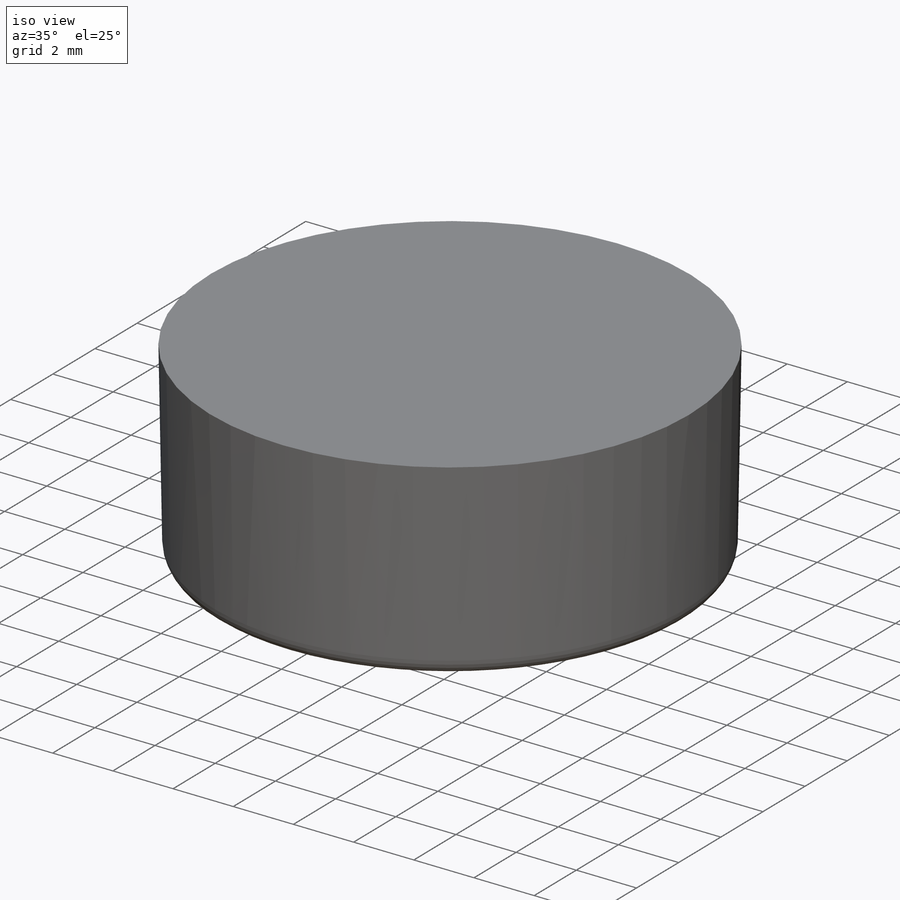
[diagram: iso view]
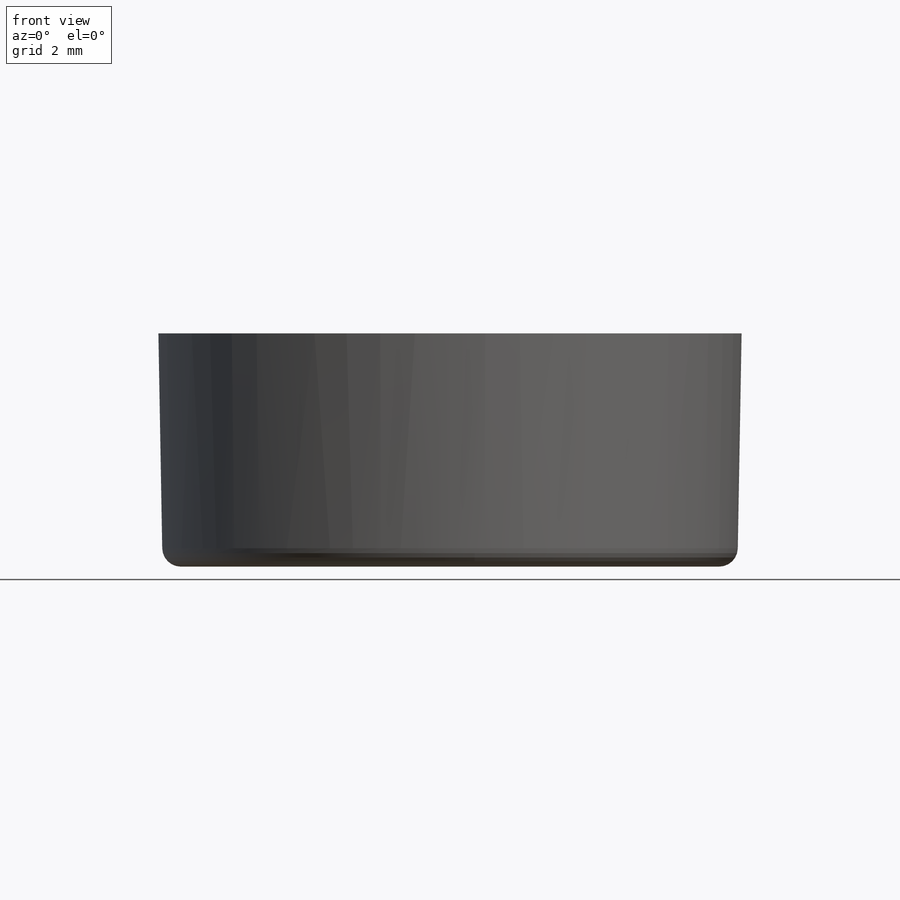
[diagram: front view]
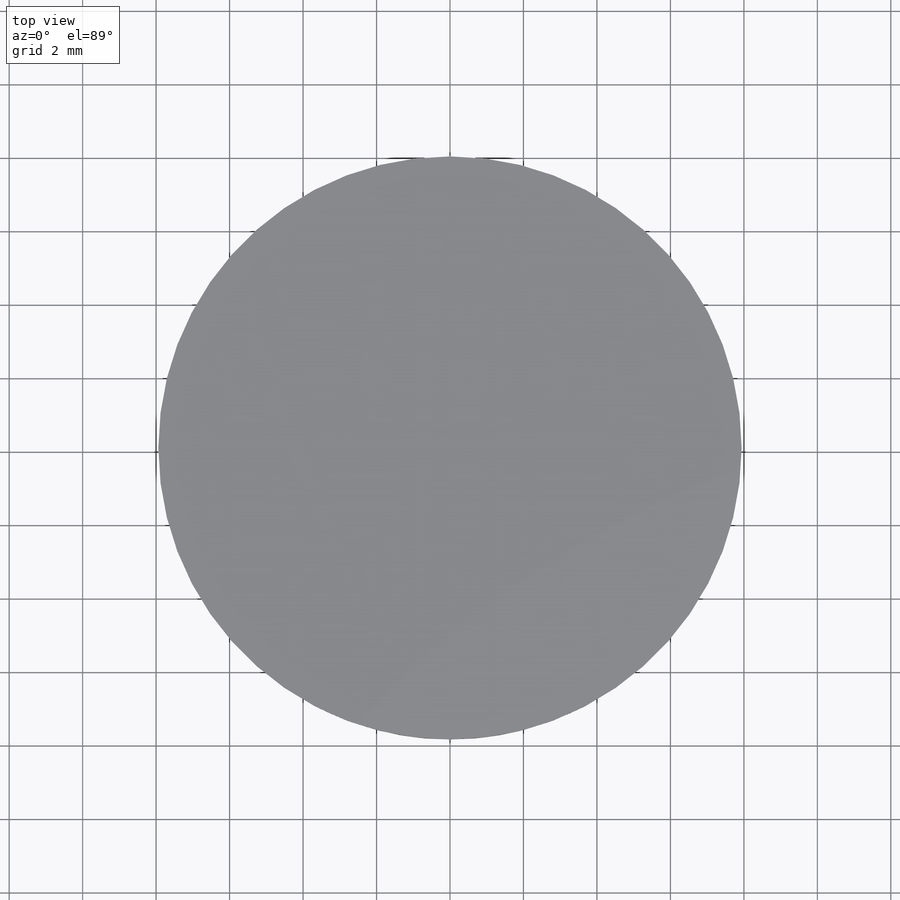
[diagram: top view]
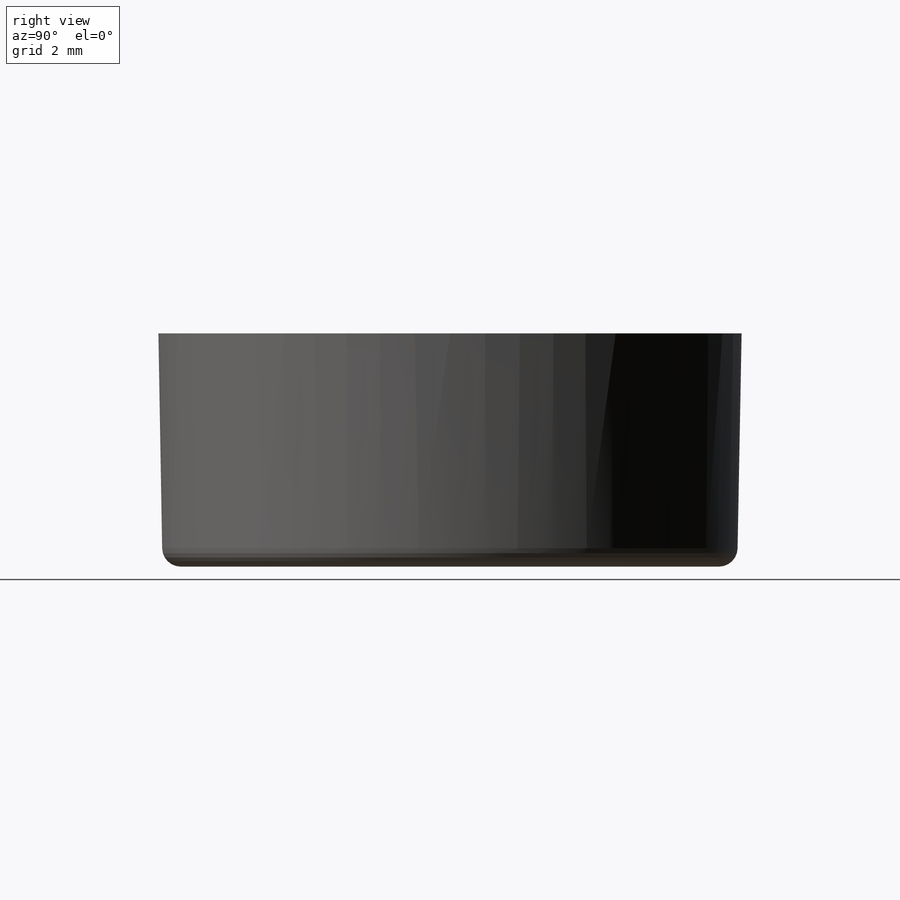
[diagram: right view]
SOLIDWORKS PART (.sldprt)
format: sldprt  version: not decoded by parser v0  size: 358,400 bytes
history: native  units: mm
features: sketch x5, extrude x2, material x1, cut_extrude x1, pattern_circular x1, fillet x1, cut_revolve x1 (+12 scaffold rows collapsed)
feature tree (24):
  scaffold x12  (default folders/planes/origin — collapsed)
  material  "CA"
  sketch  "Sketch1"  dims[D3=3.175mm D1=25.4mm D2=25.4mm]
  extrude  "Boss-Extrude1"  Depth=6.35mm
  sketch  "Sketch6"  dims[c1.D1=2.413mm c1.D2=~8.361978mm c2.D2=90.0deg c2.D3=9.525mm]
  cut_extrude  "Cut-Extrude3"  [1 undecoded]
  pattern_circular  "CirPattern3"  Count=9 Angle=360deg
  sketch  "Sketch7"  dims[D1=0.0mm D2=2.413mm]
  extrude  "Boss-Extrude3"  Depth=6.35mm
  fillet  "Fillet2"  Radius=0.508mm
  sketch  "Sketch8"  dims[D1=~0.770093mm D2=~0.789976mm]
  cut_revolve  "Cut-Revolve1"  Angle=360deg
  sketch  "Sketch11 - OFFSET .005"  dims[D1=0.127mm]
decode coverage: 10 of 11 modeling features carry decoded parameters
note: ~ marks probable driven/reference dimensions
note: 1 parameter value undecoded
note: suppression state not decoded; provenance and decode notes live in map.json
